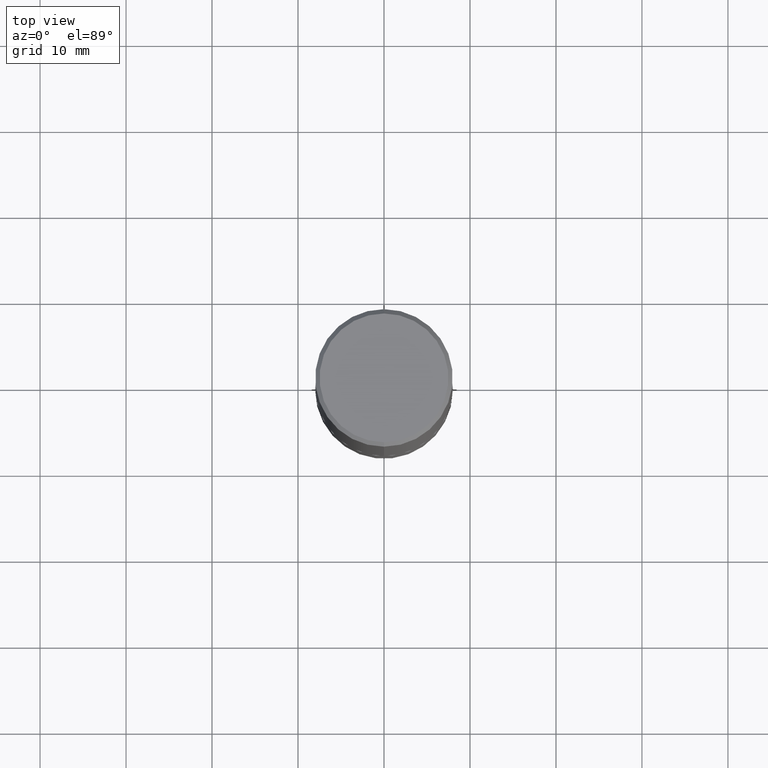
[diagram: clean part render]
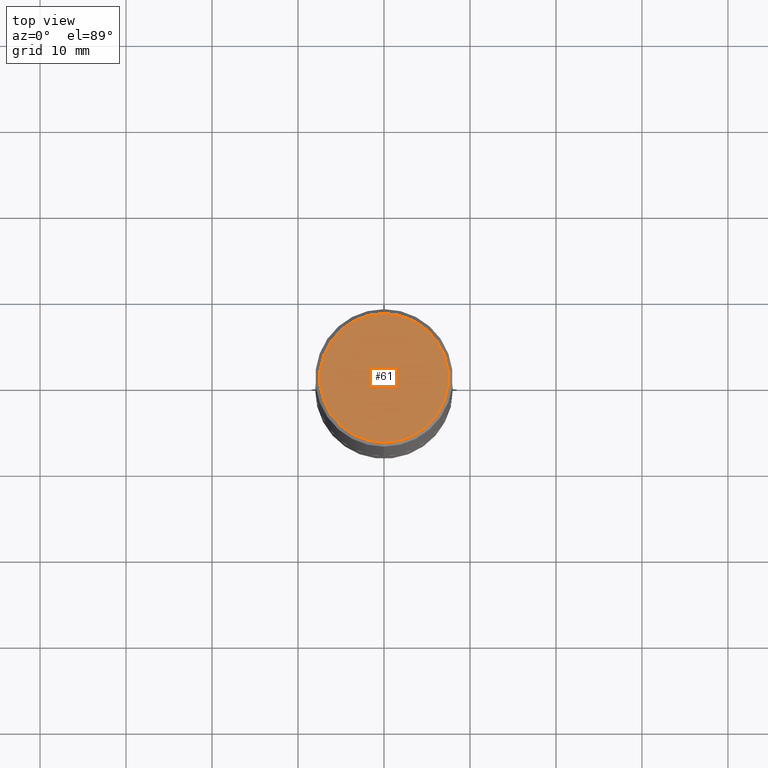
[diagram: same view with one face highlighted and labeled with its STEP entity id]
A machine part, top view. The second image highlights one B-rep face of the part: STEP entity #61.
In plain terms, the highlighted planar face has unit normal (0, -0, -1).
Its self-contained STEP definition (entity closure, byte-faithful):
#15 = ORIENTED_EDGE ( 'NONE', *, *, #255, .T. ) ;
#29 = AXIS2_PLACEMENT_3D ( 'NONE', #254, #384, #173 ) ;
#32 = CARTESIAN_POINT ( 'NONE',  ( 1.315337494998664914E-45, -1.883860214610447732E-31, -5.387118338752009983E-17 ) ) ;
#59 = AXIS2_PLACEMENT_3D ( 'NONE', #148, #179, #203 ) ;
#61 = ADVANCED_FACE ( 'NONE', ( #102 ), #75, .F. ) ;
#75 = PLANE ( 'NONE',  #29 ) ;
#102 = FACE_OUTER_BOUND ( 'NONE', #300, .T. ) ;
#114 = VERTEX_POINT ( 'NONE', #186 ) ;
#143 = ORIENTED_EDGE ( 'NONE', *, *, #273, .T. ) ;
#148 = CARTESIAN_POINT ( 'NONE',  ( 1.315337494998664914E-45, -1.883860214610447732E-31, -5.387118338752009983E-17 ) ) ;
#155 = VERTEX_POINT ( 'NONE', #249 ) ;
#159 = CIRCLE ( 'NONE', #171, 0.2949500000000001010 ) ;
#171 = AXIS2_PLACEMENT_3D ( 'NONE', #32, #410, #308 ) ;
#173 = DIRECTION ( 'NONE',  ( 6.982962677686265922E-15, 1.000000000000000000, -3.496972028735619395E-15 ) ) ;
#179 = DIRECTION ( 'NONE',  ( -2.441634677925747084E-29, 3.496972028735619789E-15, 1.000000000000000000 ) ) ;
#186 = CARTESIAN_POINT ( 'NONE',  ( 2.129454468560427362E-15, 0.2949500000000001010, -1.085303083263091523E-15 ) ) ;
#203 = DIRECTION ( 'NONE',  ( -6.982962677686265922E-15, -1.000000000000000000, 3.496972028735619395E-15 ) ) ;
#249 = CARTESIAN_POINT ( 'NONE',  ( -2.092108864420428426E-15, -0.2949500000000001010, 9.775607164880511260E-16 ) ) ;
#254 = CARTESIAN_POINT ( 'NONE',  ( 2.059624841783564852E-15, 0.2949500000000001010, -1.058367491569331424E-15 ) ) ;
#255 = EDGE_CURVE ( 'NONE', #155, #114, #319, .T. ) ;
#273 = EDGE_CURVE ( 'NONE', #114, #155, #159, .T. ) ;
#300 = EDGE_LOOP ( 'NONE', ( #143, #15 ) ) ;
#308 = DIRECTION ( 'NONE',  ( -6.982962677686265922E-15, -1.000000000000000000, 3.496972028735619395E-15 ) ) ;
#319 = CIRCLE ( 'NONE', #59, 0.2949500000000001010 ) ;
#384 = DIRECTION ( 'NONE',  ( 2.441634677925746804E-29, -3.496972028735619395E-15, -1.000000000000000000 ) ) ;
#410 = DIRECTION ( 'NONE',  ( -2.441634677925747084E-29, 3.496972028735619789E-15, 1.000000000000000000 ) ) ;